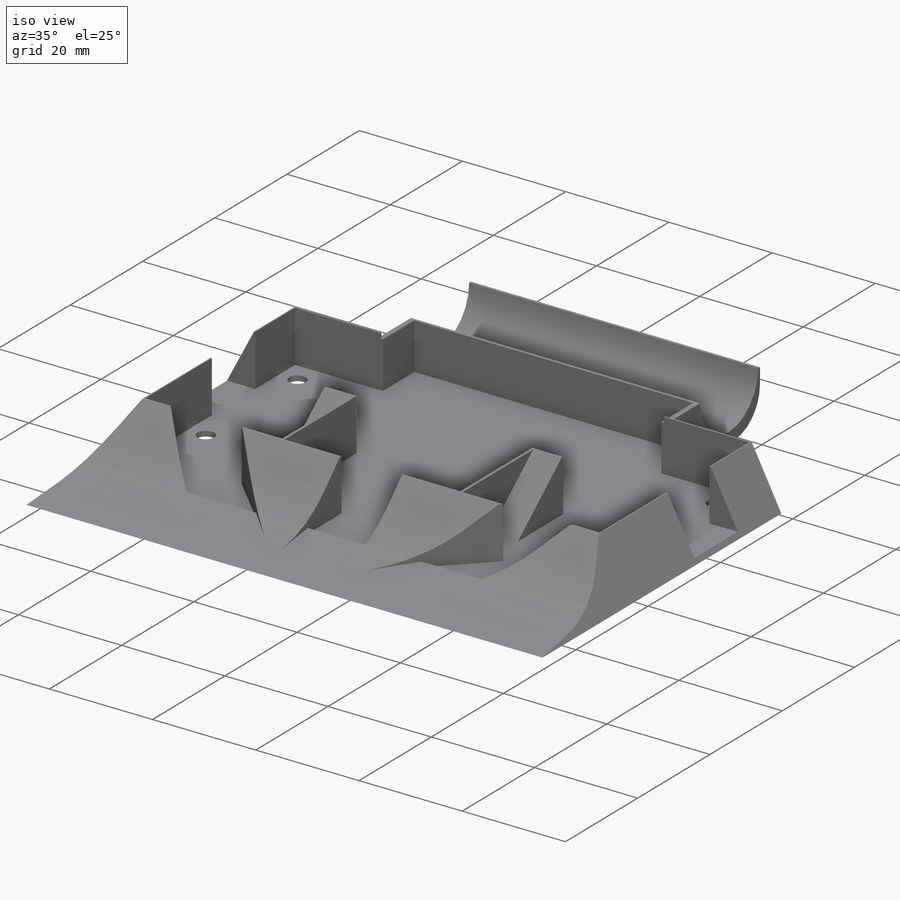
[diagram: iso view]
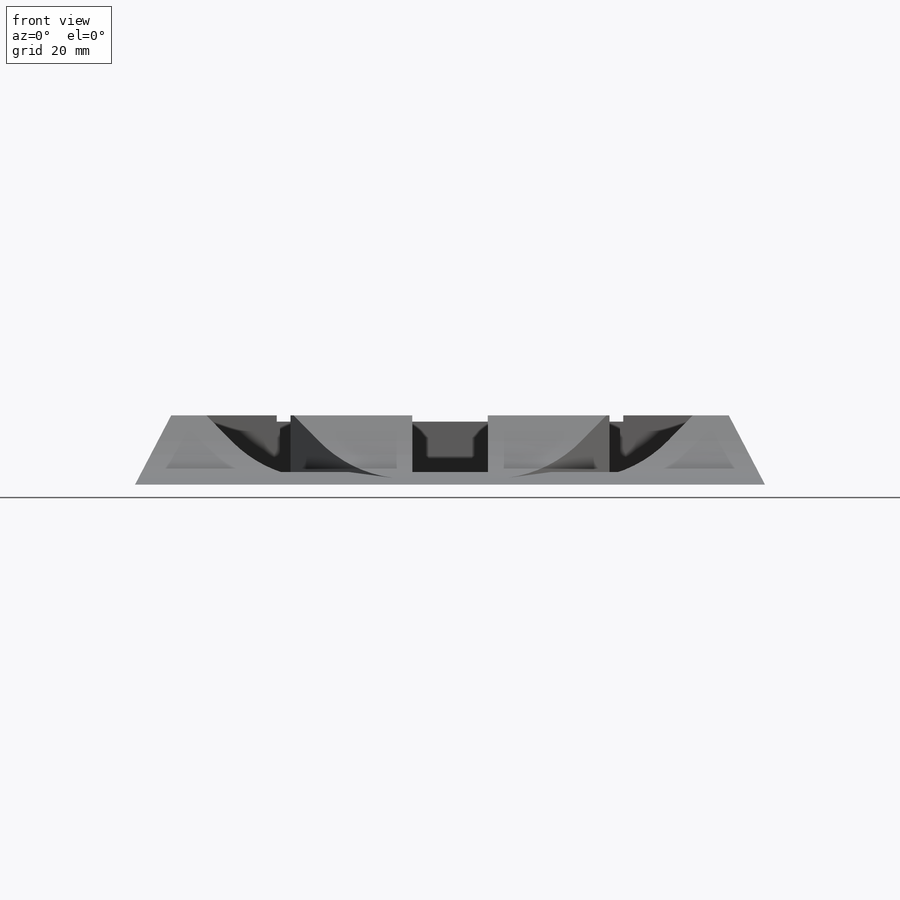
[diagram: front view]
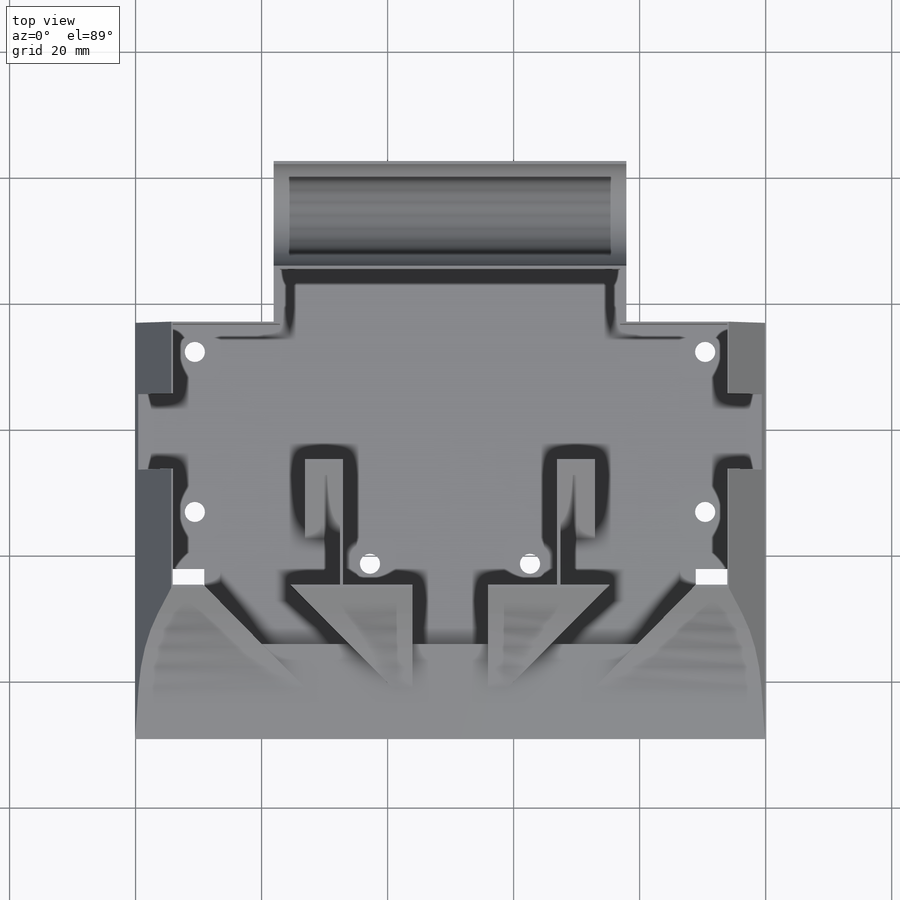
[diagram: top view]
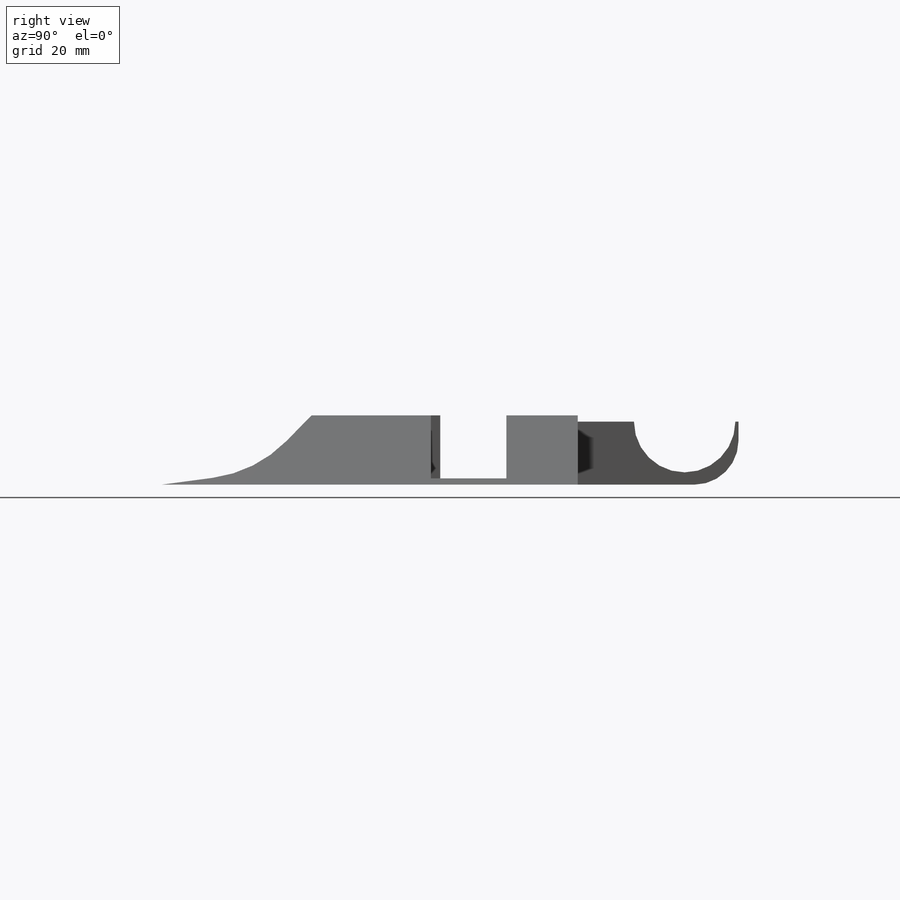
[diagram: right view]
SOLIDWORKS PART (.sldprt)
format: sldprt  version: not decoded by parser v0  size: 1,319,936 bytes
history: native  units: mm
features: sketch x51, cut_extrude x42, extrude x9, plane x3, chamfer x3, fillet x2, material x1 (+10 scaffold rows collapsed)
feature tree (121):
  scaffold x10  (default folders/planes/origin — collapsed)
  material  "Stainless Steel (ferritic)"
  plane  "Ön Düzlem"
  plane  "Üst Düzlem"
  plane  "Sağ Düzlem"
  sketch  "Sketch1"  dims[D1=100.0mm D2=95.0mm]
  extrude  "Boss-Extrude2"  Depth=20mm
  sketch  "Sketch2"  dims[D1=17.0mm D2=12.0mm]
  cut_extrude  "Cut-Extrude2"  Depth=20mm
  sketch  "Sketch3"  dims[D1=17.0mm D2=12.0mm]
  cut_extrude  "Cut-Extrude3"  Depth=22mm
  sketch  "Sketch5"  dims[D1=34.0mm D2=15.0mm D3=12.0mm]
  cut_extrude  "Cut-Extrude4"  Depth=2mm
  sketch  "Sketch7"  dims[D1=12.0mm D2=10.0mm D3=3.0mm D4=44.0mm]
  cut_extrude  "Cut-Extrude5"  Depth=60mm
  sketch  "Sketch8"  dims[D1=12.0mm D2=4.0mm D3=4.0mm D4=4.0mm D5=40.0mm]
  extrude  "Boss-Extrude3"  Depth=60mm
  sketch  "Sketch9"  dims[D1=9.8mm D2=15.2mm]
  cut_extrude  "Cut-Extrude6"  Depth=40mm
  sketch  "Sketch10"  dims[D1=9.7mm D2=15.2mm]
  cut_extrude  "Cut-Extrude7"  Depth=40mm
  sketch  "Sketch11"  dims[D1=12.0mm D2=10.0mm D3=3.0mm D4=11.0mm]
  cut_extrude  "Cut-Extrude8"  Depth=100mm
  sketch  "Sketch12"
  cut_extrude  "Cut-Extrude9"  Depth=100mm
  sketch  "Sketch13"  dims[D1=10.0mm D2=3.0mm D3=25.0mm]
  cut_extrude  "Cut-Extrude11"  Depth=100mm
  sketch  "Sketch15"  dims[D1=5.0mm]
  extrude  "Boss-Extrude4"  [1 undecoded]
  sketch  "Sketch16"
  cut_extrude  "Cut-Extrude12"  [1 undecoded]
  sketch  "Sketch17"
  cut_extrude  "Cut-Extrude13"  Depth=10mm
  sketch  "Sketch18"  dims[c1.D1=10.0mm c1.D2=~15.511009mm c2.D1=11.0mm c2.D2=17.0mm]
  cut_extrude  "Cut-Extrude14"  Depth=100mm
  sketch  "Sketch19"  dims[D1=5.5mm D2=2.0mm D3=5.5mm D4=2.0mm D5=45.0mm]
  cut_extrude  "Cut-Extrude16"  [1 undecoded]
  sketch  "Sketch23"
  extrude  "Boss-Extrude6"  [1 undecoded]
  sketch  "Sketch24"  dims[D1=34.0mm D2=21.0mm D3=0.5mm D4=11.0mm D5=11.0mm]
  cut_extrude  "Cut-Extrude17"  [1 undecoded]
  sketch  "Sketch25"  dims[D1=0.0mm D2=0.5mm]
  cut_extrude  "Cut-Extrude18"  [1 undecoded]
  sketch  "Sketch26"  dims[c1.D1=21.0mm c1.D2=34.0mm c1.D3=0.5mm c1.D4=0.5mm c2.D4=1.0mm c2.D5=21.0mm c2.D6=0.5mm]
  cut_extrude  "Cut-Extrude19"  [1 undecoded]
  sketch  "Sketch27"
  cut_extrude  "Cut-Extrude20"  [1 undecoded]
  sketch  "Sketch28"
  cut_extrude  "Cut-Extrude21"  [1 undecoded]
  sketch  "Sketch29"  dims[D1=0.5mm D2=0.5mm D3=0.5mm D4=0.5mm]
  cut_extrude  "Cut-Extrude22"  [1 undecoded]
  sketch  "Sketch30"  dims[D1=12.0mm]
  cut_extrude  "Cut-Extrude23"  [1 undecoded]
  sketch  "Sketch31"  dims[D1=12.0mm]
  cut_extrude  "Cut-Extrude24"  [1 undecoded]
  sketch  "Sketch43"
  extrude  "Boss-Extrude9"  [1 undecoded]
  sketch  "Sketch44"
  cut_extrude  "Cut-Extrude37"  [1 undecoded]
  sketch  "Sketch45"
  cut_extrude  "Cut-Extrude38"  Depth=100mm
  sketch  "Sketch46"  dims[D1=0.0mm]
  cut_extrude  "Cut-Extrude39"  Depth=100mm
  sketch  "Sketch47"
  cut_extrude  "Cut-Extrude40"  Depth=2mm
  sketch  "Sketch48"  dims[D1=0.5mm D2=15.0mm D3=2.0mm]
  cut_extrude  "Cut-Extrude41"  Depth=100mm
  sketch  "Sketch49"
  cut_extrude  "Cut-Extrude44"  [1 undecoded]
  sketch  "Sketch51"  dims[D1=0.0mm D2=0.0mm D3=0.0mm D4=0.0mm D5=0.0mm]
  extrude  "Boss-Extrude13"  Depth=2mm
  sketch  "Sketch54"
  cut_extrude  "Cut-Extrude47"  Depth=100mm
  fillet  "Fillet6"  Radius=20mm
  sketch  "Sketch55"  dims[D1=0.25mm D2=0.25mm]
  cut_extrude  "Cut-Extrude48"  Depth=100mm
  sketch  "Sketch56"  dims[D1=0.5mm D2=0.5mm D3=0.5mm D4=10.0mm]
  cut_extrude  "Cut-Extrude49"  [1 undecoded]
  sketch  "Sketch57"  dims[D1=0.5mm]
  cut_extrude  "Cut-Extrude50"  [1 undecoded]
  sketch  "Sketch58"  dims[D1=9.0mm]
  extrude  "Boss-Extrude14"  [1 undecoded]
  sketch  "Sketch59"  dims[c1.D1=~4.963753mm c1.D2=16.1mm c2.D1=1.0mm c2.D3=0.5mm]
  cut_extrude  "Cut-Extrude52"  Depth=100mm
  sketch  "Sketch60"  dims[D1=0.5mm D2=0.5mm]
  cut_extrude  "Cut-Extrude54"  [1 undecoded]
  sketch  "Sketch62"  dims[D1=12.0mm D2=9.0mm D3=2.0mm D4=15.0mm D5=9.0mm D6=2.0mm]
  cut_extrude  "Cut-Extrude55"  Depth=3mm
  sketch  "Sketch63"
  cut_extrude  "Cut-Extrude56"  Depth=3mm
  chamfer  "Chamfer1"  Distance=5mm Angle=20deg
  sketch  "Sketch65"
  cut_extrude  "Cut-Extrude57"  Depth=1mm
  sketch  "Sketch66"
  cut_extrude  "Cut-Extrude58"  Depth=1mm
  chamfer  "Chamfer3"  Distance=1.7mm
  sketch  "Sketch67"  dims[D1=12.0mm D2=11.0mm]
  cut_extrude  "Cut-Extrude59"  Depth=20mm
  sketch  "Sketch68"  dims[D1=11.0mm D2=12.0mm]
  cut_extrude  "Cut-Extrude60"  Depth=20mm
  sketch  "Sketch69"  dims[D1=0.5mm D2=0.0mm D3=0.0mm]
  extrude  "Boss-Extrude15"  [1 undecoded]
  sketch  "Sketch70"  dims[D1=0.5mm]
  extrude  "Boss-Extrude16"  [1 undecoded]
  sketch  "Sketch71"  dims[D1=0.5mm D2=0.0mm]
  cut_extrude  "Cut-Extrude61"  [1 undecoded]
  sketch  "Sketch72"  dims[D1=0.5mm]
  cut_extrude  "Cut-Extrude62"  [1 undecoded]
  chamfer  "Chamfer4"  Distance=1.7mm
  fillet  "Fillet10"  Radius=7mm
  sketch  "Sketch73"  dims[c1.D1=3.3mm c1.D2=~3.12114mm c1.D5=~2.600921mm c1.D6=~1.747171mm c1.D8=~1.838675mm c2.D1=6.7mm c2.D2=25.4mm c2.D3=6.7mm c2.D4=3.5mm c2.D5=3.5mm c2.D6=6.7mm c2.D7=3.5mm c2.D8=6.7mm]
  cut_extrude  "Cut-Extrude63"  Depth=20mm
decode coverage: 69 of 107 modeling features carry decoded parameters
note: ~ marks probable driven/reference dimensions
note: 23 parameter values undecoded
summary: no parameter record found for 23 features
note: suppression state not decoded; provenance and decode notes live in map.json
